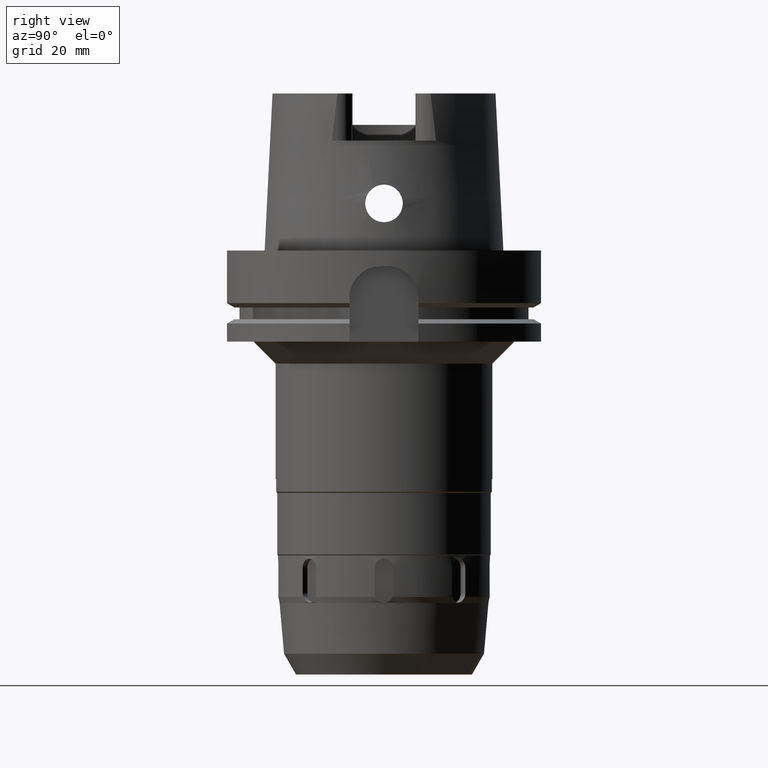
[diagram: clean part render]
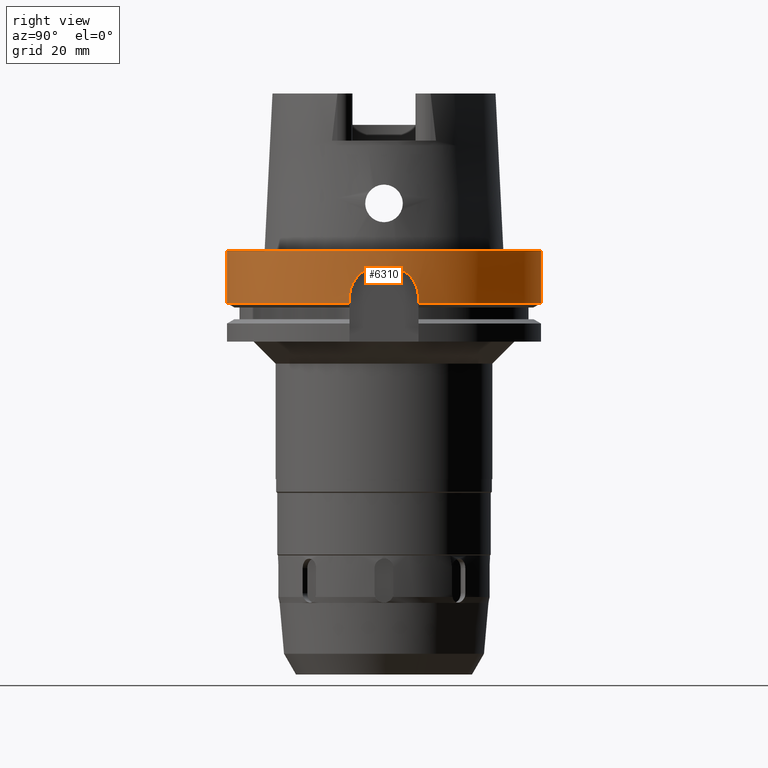
[diagram: same view with one face highlighted and labeled with its STEP entity id]
A machine part, right view. The second image highlights one B-rep face of the part: STEP entity #6310.
In plain terms, the highlighted cylindrical surface (partial cylindrical patch) has radius 50 mm, axis along (0, 0, 1).
Its self-contained STEP definition (entity closure, byte-faithful):
#2919=DIRECTION('',(0.E0,2.969006079282E-14,-1.E0));
#2920=VECTOR('',#2919,1.675240473581E1);
#2921=CARTESIAN_POINT('',(0.E0,-5.E1,0.E0));
#2922=LINE('',#2921,#2920);
#2972=CARTESIAN_POINT('',(4.877499359303E1,1.1E1,-1.675240473581E1));
#2977=CARTESIAN_POINT('',(0.E0,0.E0,-1.675240473581E1));
#2978=DIRECTION('',(0.E0,0.E0,1.E0));
#2979=DIRECTION('',(9.754998718606E-1,2.2E-1,0.E0));
#2980=AXIS2_PLACEMENT_3D('',#2977,#2978,#2979);
#3121=CARTESIAN_POINT('',(4.998999899980E1,-1.E0,-5.E0));
#3122=CARTESIAN_POINT('',(4.997504301820E1,-1.747649504995E0,-5.E0));
#3123=CARTESIAN_POINT('',(4.991291509294E1,-3.209087256428E0,
-5.162327818369E0));
#3124=CARTESIAN_POINT('',(4.972649899334E1,-5.357682436917E0,
-5.904331775835E0));
#3125=CARTESIAN_POINT('',(4.947875385072E1,-7.274178437585E0,
-7.105066867602E0));
#3126=CARTESIAN_POINT('',(4.921266909849E1,-8.876813600713E0,
-8.703268635942E0));
#3127=CARTESIAN_POINT('',(4.897589085151E1,-1.008412619631E1,
-1.061693787722E1));
#3128=CARTESIAN_POINT('',(4.881255513283E1,-1.083556002178E1,
-1.277678054109E1));
#3129=CARTESIAN_POINT('',(4.877499359303E1,-1.1E1,-1.424649556495E1));
#3130=CARTESIAN_POINT('',(4.877499359303E1,-1.1E1,-1.5E1));
#3135=DIRECTION('',(-5.027793947017E-13,6.690209687563E-14,-1.E0));
#3136=VECTOR('',#3135,1.752404735809E0);
#3137=CARTESIAN_POINT('',(4.877499359303E1,-1.1E1,-1.5E1));
#3138=LINE('',#3137,#3136);
#3142=DIRECTION('',(0.E0,-2.969006079282E-14,-1.E0));
#3143=VECTOR('',#3142,1.675240473581E1);
#3144=CARTESIAN_POINT('',(0.E0,5.E1,0.E0));
#3145=LINE('',#3144,#3143);
#3149=DIRECTION('',(4.946700496259E-13,7.095676941355E-14,1.E0));
#3150=VECTOR('',#3149,1.752404735809E0);
#3151=CARTESIAN_POINT('',(4.877499359303E1,1.1E1,-1.675240473581E1));
#3152=LINE('',#3151,#3150);
#3156=CARTESIAN_POINT('',(4.877499359303E1,1.1E1,-1.5E1));
#3157=CARTESIAN_POINT('',(4.877499359303E1,1.1E1,-1.425448395654E1));
#3158=CARTESIAN_POINT('',(4.881177750163E1,1.083892599063E1,-1.279803583097E1));
#3159=CARTESIAN_POINT('',(4.897257891128E1,1.009974257480E1,-1.065171430714E1));
#3160=CARTESIAN_POINT('',(4.920736576664E1,8.905515329642E0,-8.739945530532E0));
#3161=CARTESIAN_POINT('',(4.947305104361E1,7.312330785848E0,-7.135441452962E0));
#3162=CARTESIAN_POINT('',(4.972231634994E1,5.397059518142E0,-5.922392987253E0));
#3163=CARTESIAN_POINT('',(4.991145818504E1,3.235942603121E0,-5.166828100384E0));
#3164=CARTESIAN_POINT('',(4.997483573129E1,1.758011777479E0,-5.E0));
#3165=CARTESIAN_POINT('',(4.998999899980E1,1.E0,-5.E0));
#3170=CARTESIAN_POINT('',(0.E0,0.E0,-5.E0));
#3171=DIRECTION('',(0.E0,0.E0,1.E0));
#3172=DIRECTION('',(9.997999799960E-1,-2.E-2,0.E0));
#3173=AXIS2_PLACEMENT_3D('',#3170,#3171,#3172);
#3224=CARTESIAN_POINT('',(0.E0,0.E0,-1.675240473581E1));
#3225=DIRECTION('',(0.E0,0.E0,1.E0));
#3226=DIRECTION('',(0.E0,-1.E0,0.E0));
#3227=AXIS2_PLACEMENT_3D('',#3224,#3225,#3226);
#3378=CARTESIAN_POINT('',(0.E0,0.E0,0.E0));
#3379=DIRECTION('',(0.E0,0.E0,-1.E0));
#3380=DIRECTION('',(0.E0,1.E0,0.E0));
#3381=AXIS2_PLACEMENT_3D('',#3378,#3379,#3380);
#4064=CARTESIAN_POINT('',(0.E0,-5.E1,-1.675240473581E1));
#4065=VERTEX_POINT('',#4064);
#4066=CARTESIAN_POINT('',(4.877499359303E1,-1.1E1,-1.675240473581E1));
#4067=VERTEX_POINT('',#4066);
#4068=VERTEX_POINT('',#2972);
#4069=CARTESIAN_POINT('',(0.E0,5.E1,-1.675240473581E1));
#4070=VERTEX_POINT('',#4069);
#4072=CARTESIAN_POINT('',(0.E0,5.E1,0.E0));
#4073=VERTEX_POINT('',#4072);
#4074=CARTESIAN_POINT('',(0.E0,-5.E1,0.E0));
#4075=VERTEX_POINT('',#4074);
#4078=CARTESIAN_POINT('',(4.998999899980E1,-1.E0,-5.E0));
#4079=CARTESIAN_POINT('',(4.998999899980E1,1.E0,-5.E0));
#4080=VERTEX_POINT('',#4078);
#4081=VERTEX_POINT('',#4079);
#4082=VERTEX_POINT('',#3130);
#4083=CARTESIAN_POINT('',(4.877499359303E1,1.1E1,-1.5E1));
#4084=VERTEX_POINT('',#4083);
#6288=CARTESIAN_POINT('',(0.E0,0.E0,-1.4425E2));
#6289=DIRECTION('',(0.E0,0.E0,1.E0));
#6290=DIRECTION('',(0.E0,1.E0,0.E0));
#6291=AXIS2_PLACEMENT_3D('',#6288,#6289,#6290);
#6292=CYLINDRICAL_SURFACE('',#6291,5.E1);
#6294=ORIENTED_EDGE('',*,*,#6293,.F.);
#6296=ORIENTED_EDGE('',*,*,#6295,.T.);
#6297=ORIENTED_EDGE('',*,*,#6038,.T.);
#6299=ORIENTED_EDGE('',*,*,#6298,.F.);
#6300=ORIENTED_EDGE('',*,*,#6194,.F.);
#6302=ORIENTED_EDGE('',*,*,#6301,.F.);
#6303=ORIENTED_EDGE('',*,*,#6190,.T.);
#6304=ORIENTED_EDGE('',*,*,#6220,.F.);
#6305=ORIENTED_EDGE('',*,*,#5986,.T.);
#6307=ORIENTED_EDGE('',*,*,#6306,.T.);
#6308=EDGE_LOOP('',(#6294,#6296,#6297,#6299,#6300,#6302,#6303,#6304,#6305,
#6307));
#6309=FACE_OUTER_BOUND('',#6308,.F.);
#2981=CIRCLE('',#2980,5.E1);
#3131=B_SPLINE_CURVE_WITH_KNOTS('',3,(#3121,#3122,#3123,#3124,#3125,#3126,#3127,
#3128,#3129,#3130),.UNSPECIFIED.,.F.,.F.,(4,1,1,1,1,1,1,4),(0.E0,
1.428571428571E-1,2.857142857143E-1,4.285714285714E-1,5.714285714286E-1,
7.142857142857E-1,8.571428571429E-1,1.E0),.UNSPECIFIED.);
#3166=B_SPLINE_CURVE_WITH_KNOTS('',3,(#3156,#3157,#3158,#3159,#3160,#3161,#3162,
#3163,#3164,#3165),.UNSPECIFIED.,.F.,.F.,(4,1,1,1,1,1,1,4),(0.E0,
1.428571428571E-1,2.857142857143E-1,4.285714285714E-1,5.714285714286E-1,
7.142857142857E-1,8.571428571429E-1,1.E0),.UNSPECIFIED.);
#3174=CIRCLE('',#3173,5.E1);
#3228=CIRCLE('',#3227,5.E1);
#3382=CIRCLE('',#3381,5.E1);
#5986=EDGE_CURVE('',#4068,#4084,#3152,.T.);
#6038=EDGE_CURVE('',#4082,#4067,#3138,.T.);
#6190=EDGE_CURVE('',#4073,#4070,#3145,.T.);
#6194=EDGE_CURVE('',#4075,#4065,#2922,.T.);
#6220=EDGE_CURVE('',#4068,#4070,#2981,.T.);
#6293=EDGE_CURVE('',#4080,#4081,#3174,.T.);
#6295=EDGE_CURVE('',#4080,#4082,#3131,.T.);
#6298=EDGE_CURVE('',#4065,#4067,#3228,.T.);
#6301=EDGE_CURVE('',#4073,#4075,#3382,.T.);
#6306=EDGE_CURVE('',#4084,#4081,#3166,.T.);
#6310=ADVANCED_FACE('',(#6309),#6292,.T.);